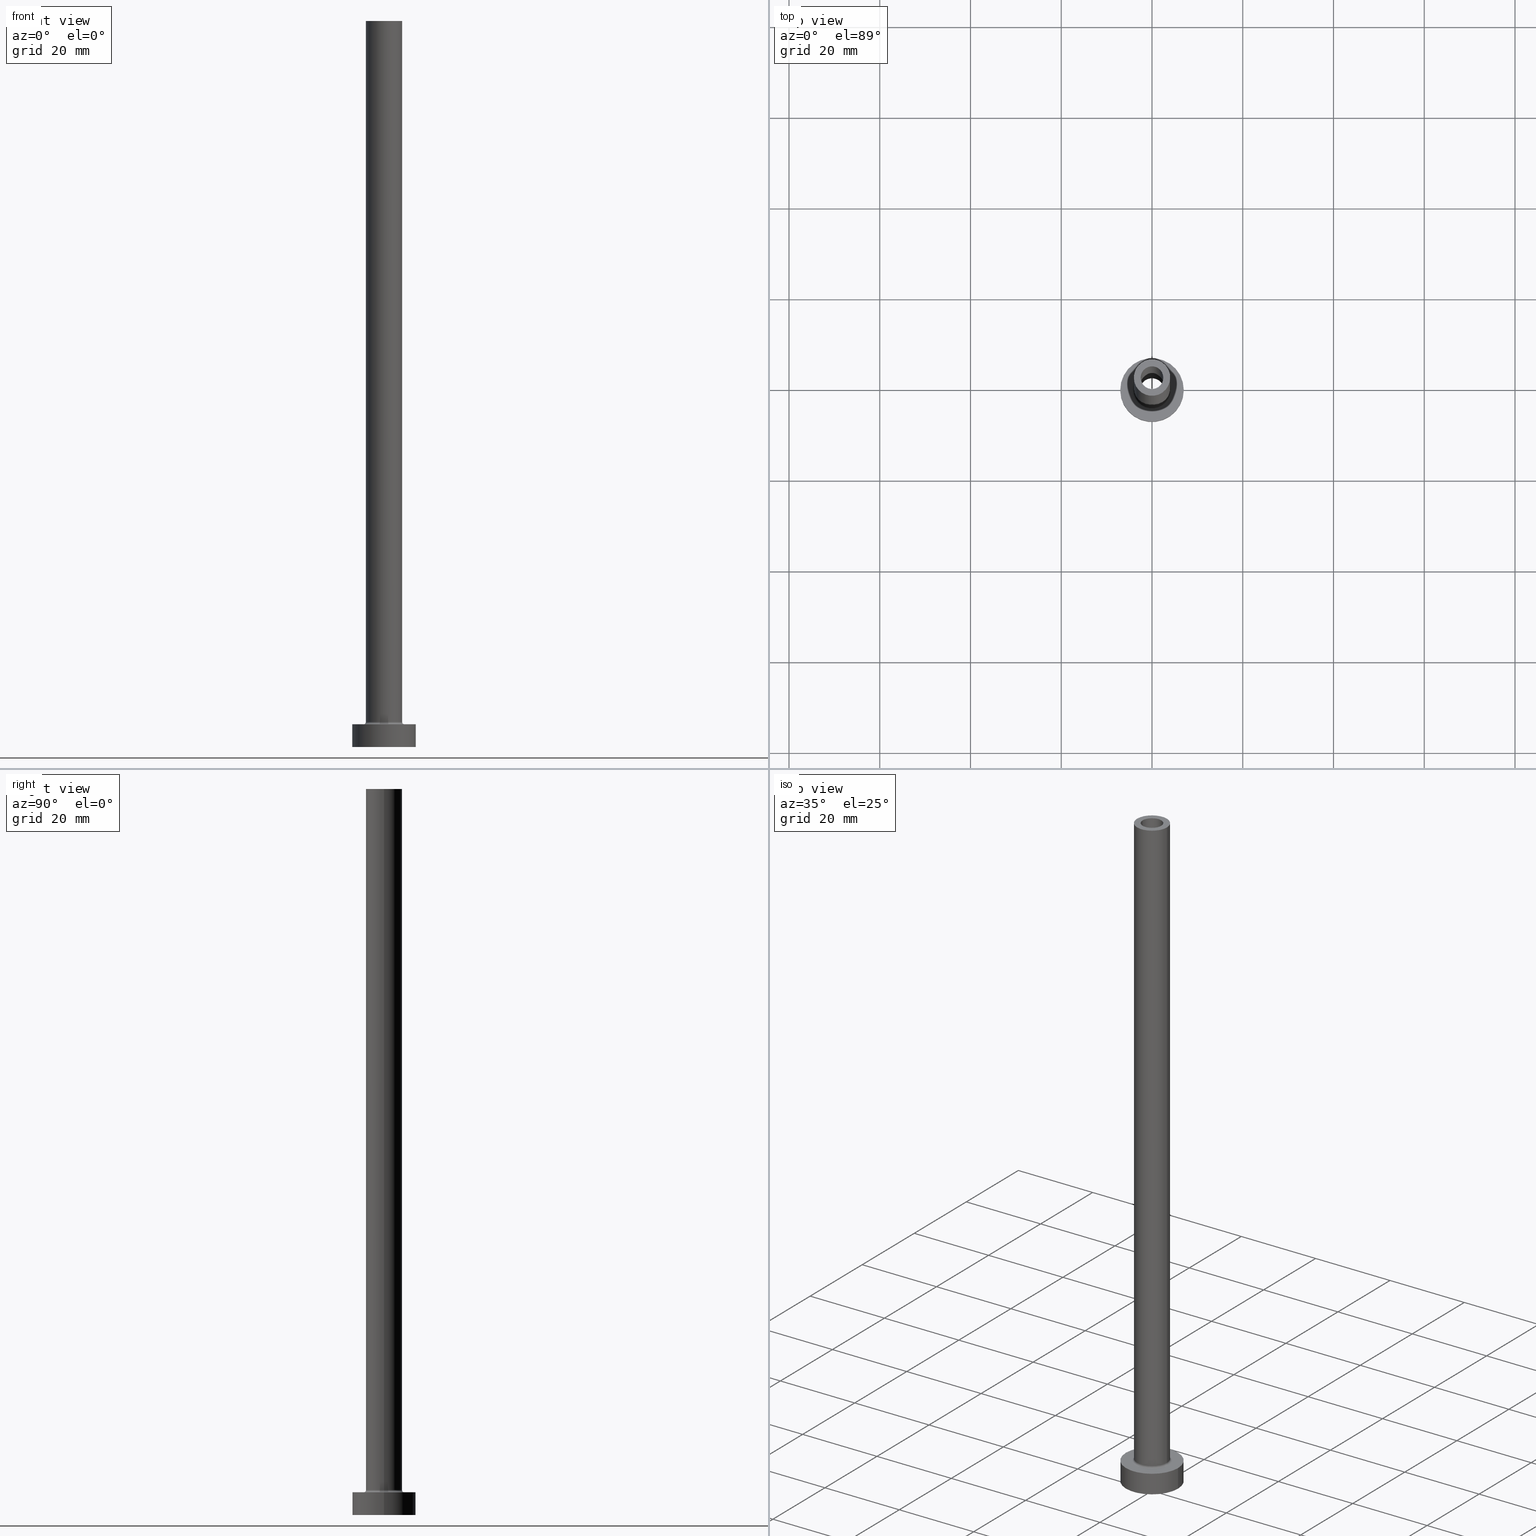
[diagram: canonical four-view strip — front | top / right | iso, engineering-drawing reading convention]
A machine part, canonical four-view strip (front | top / right | iso — engineering-drawing reading convention). The complete STEP part file that produces these views, byte-faithful:
ISO-10303-21;
HEADER;
FILE_DESCRIPTION (( 'STEP AP203' ),
    '1' );
FILE_NAME ('f196.STEP',
    '2023-02-13T17:11:36',
    ( '' ),
    ( '' ),
    'SwSTEP 2.0',
    'SolidWorks 2019',
    '' );
FILE_SCHEMA (( 'CONFIG_CONTROL_DESIGN' ));
ENDSEC;

DATA;
#1 = CALENDAR_DATE ( 2023, 13, 2 ) ;
#2 = CARTESIAN_POINT ( 'NONE',  ( 4.500000000000000888, 0.000000000000000000, 5.500000000000005329 ) ) ;
#3 = VECTOR ( 'NONE', #172, 1000.000000000000000 ) ;
#4 = PERSON_AND_ORGANIZATION ( #58, #191 ) ;
#5 = PERSON_AND_ORGANIZATION_ROLE ( 'design_owner' ) ;
#6 = AXIS2_PLACEMENT_3D ( 'NONE', #448, #62, #342 ) ;
#7 = APPLICATION_PROTOCOL_DEFINITION ( 'international standard', 'config_control_design', 1994, #75 ) ;
#8 = VERTEX_POINT ( 'NONE', #81 ) ;
#9 = LINE ( 'NONE', #245, #290 ) ;
#10 = CIRCLE ( 'NONE', #403, 4.000000000000000000 ) ;
#11 = COORDINATED_UNIVERSAL_TIME_OFFSET ( 1, 0, .AHEAD. ) ;
#12 = ORIENTED_EDGE ( 'NONE', *, *, #438, .F. ) ;
#13 = APPLICATION_PROTOCOL_DEFINITION ( 'international standard', 'config_control_design', 1994, #166 ) ;
#14 = EDGE_LOOP ( 'NONE', ( #262, #375 ) ) ;
#15 = CYLINDRICAL_SURFACE ( 'NONE', #237, 7.000000000000000000 ) ;
#16 = CIRCLE ( 'NONE', #435, 7.000000000000000000 ) ;
#17 = EDGE_CURVE ( 'NONE', #394, #154, #89, .T. ) ;
#18 = EDGE_CURVE ( 'NONE', #449, #350, #427, .T. ) ;
#19 = ORIENTED_EDGE ( 'NONE', *, *, #110, .F. ) ;
#20 = AXIS2_PLACEMENT_3D ( 'NONE', #112, #42, #352 ) ;
#21 = PRODUCT_DEFINITION_FORMATION_WITH_SPECIFIED_SOURCE ( 'LIBOVOLN�', '', #334, .NOT_KNOWN. ) ;
#22 = DIRECTION ( 'NONE',  ( 1.000000000000000000, 0.000000000000000000, 0.000000000000000000 ) ) ;
#23 = ORIENTED_EDGE ( 'NONE', *, *, #236, .T. ) ;
#24 = CARTESIAN_POINT ( 'NONE',  ( 0.000000000000000000, 0.000000000000000000, 160.0000000000000000 ) ) ;
#25 = DIRECTION ( 'NONE',  ( 0.000000000000000000, 0.000000000000000000, 1.000000000000000000 ) ) ;
#26 = DIRECTION ( 'NONE',  ( 1.000000000000000000, 0.000000000000000000, 0.000000000000000000 ) ) ;
#27 = AXIS2_PLACEMENT_3D ( 'NONE', #150, #288, #160 ) ;
#28 = ORIENTED_EDGE ( 'NONE', *, *, #18, .F. ) ;
#29 = LOCAL_TIME ( 18, 11, 36.00000000000000000, #88 ) ;
#30 = ORIENTED_EDGE ( 'NONE', *, *, #242, .T. ) ;
#31 = ORIENTED_EDGE ( 'NONE', *, *, #94, .F. ) ;
#32 = FACE_OUTER_BOUND ( 'NONE', #171, .T. ) ;
#33 = UNCERTAINTY_MEASURE_WITH_UNIT (LENGTH_MEASURE( 1.000000000000000082E-05 ), #105, 'distance_accuracy_value', 'NONE');
#34 = ORIENTED_EDGE ( 'NONE', *, *, #428, .F. ) ;
#35 = DIRECTION ( 'NONE',  ( 1.000000000000000000, 0.000000000000000000, -0.000000000000000000 ) ) ;
#36 = CIRCLE ( 'NONE', #203, 4.500000000000000888 ) ;
#37 = PERSON_AND_ORGANIZATION ( #58, #191 ) ;
#38 = CARTESIAN_POINT ( 'NONE',  ( 0.000000000000000000, 0.000000000000000000, 5.000000000000000000 ) ) ;
#39 = AXIS2_PLACEMENT_3D ( 'NONE', #363, #53, #331 ) ;
#40 = FACE_OUTER_BOUND ( 'NONE', #224, .T. ) ;
#41 = ORIENTED_EDGE ( 'NONE', *, *, #226, .T. ) ;
#42 = DIRECTION ( 'NONE',  ( 0.000000000000000000, 0.000000000000000000, -1.000000000000000000 ) ) ;
#43 = DIRECTION ( 'NONE',  ( 1.000000000000000000, 0.000000000000000000, 0.000000000000000000 ) ) ;
#44 = DIRECTION ( 'NONE',  ( 0.000000000000000000, 0.000000000000000000, 1.000000000000000000 ) ) ;
#45 = ORIENTED_EDGE ( 'NONE', *, *, #107, .T. ) ;
#46 = ORIENTED_EDGE ( 'NONE', *, *, #453, .T. ) ;
#47 = AXIS2_PLACEMENT_3D ( 'NONE', #382, #293, #256 ) ;
#48 = APPROVAL_ROLE ( '' ) ;
#49 = APPROVAL ( #220, 'NEUR�EN�' ) ;
#50 = DIRECTION ( 'NONE',  ( -0.000000000000000000, -0.000000000000000000, -1.000000000000000000 ) ) ;
#51 = AXIS2_PLACEMENT_3D ( 'NONE', #278, #422, #419 ) ;
#52 =( GEOMETRIC_REPRESENTATION_CONTEXT ( 3 ) GLOBAL_UNCERTAINTY_ASSIGNED_CONTEXT ( ( #33 ) ) GLOBAL_UNIT_ASSIGNED_CONTEXT ( ( #105, #206, #356 ) ) REPRESENTATION_CONTEXT ( 'NONE', 'WORKASPACE' ) );
#53 = DIRECTION ( 'NONE',  ( 0.000000000000000000, 0.000000000000000000, 1.000000000000000000 ) ) ;
#54 = APPROVAL_ROLE ( '' ) ;
#55 = AXIS2_PLACEMENT_3D ( 'NONE', #24, #59, #22 ) ;
#56 = ORIENTED_EDGE ( 'NONE', *, *, #260, .T. ) ;
#57 = DIRECTION ( 'NONE',  ( 0.000000000000000000, -1.000000000000000000, 0.000000000000000000 ) ) ;
#58 = PERSON ( 'NEUR�EN�', 'NEUR�EN�', 'NEUR�EN�', ('NEUR�EN�'), ('NEUR�EN�'), ('NEUR�EN�') ) ;
#59 = DIRECTION ( 'NONE',  ( 0.000000000000000000, 0.000000000000000000, 1.000000000000000000 ) ) ;
#60 = ORIENTED_EDGE ( 'NONE', *, *, #242, .F. ) ;
#61 = DIRECTION ( 'NONE',  ( 1.000000000000000000, 0.000000000000000000, -0.000000000000000000 ) ) ;
#62 = DIRECTION ( 'NONE',  ( 0.000000000000000000, 0.000000000000000000, -1.000000000000000000 ) ) ;
#63 = EDGE_LOOP ( 'NONE', ( #430, #320 ) ) ;
#64 = CARTESIAN_POINT ( 'NONE',  ( 0.000000000000000000, 0.000000000000000000, 5.000000000000000000 ) ) ;
#65 = EDGE_CURVE ( 'NONE', #122, #300, #344, .T. ) ;
#66 = ORIENTED_EDGE ( 'NONE', *, *, #226, .F. ) ;
#67 = CARTESIAN_POINT ( 'NONE',  ( 0.000000000000000000, 0.000000000000000000, 5.500000000000005329 ) ) ;
#68 = VECTOR ( 'NONE', #400, 1000.000000000000000 ) ;
#69 = ORIENTED_EDGE ( 'NONE', *, *, #294, .T. ) ;
#70 = APPROVAL_ROLE ( '' ) ;
#71 = FACE_BOUND ( 'NONE', #63, .T. ) ;
#72 = ORIENTED_EDGE ( 'NONE', *, *, #374, .F. ) ;
#73 = DIRECTION ( 'NONE',  ( -1.000000000000000000, 0.000000000000000000, 0.000000000000000000 ) ) ;
#74 = PERSON_AND_ORGANIZATION ( #58, #191 ) ;
#75 = APPLICATION_CONTEXT ( 'configuration controlled 3d designs of mechanical parts and assemblies' ) ;
#76 = CARTESIAN_POINT ( 'NONE',  ( -2.649999999999999911, 0.000000000000000000, 0.000000000000000000 ) ) ;
#77 = AXIS2_PLACEMENT_3D ( 'NONE', #299, #163, #240 ) ;
#78 = VERTEX_POINT ( 'NONE', #263 ) ;
#79 = EDGE_LOOP ( 'NONE', ( #345, #151, #455, #23 ) ) ;
#80 = DIRECTION ( 'NONE',  ( 1.000000000000000000, 0.000000000000000000, 0.000000000000000000 ) ) ;
#81 = CARTESIAN_POINT ( 'NONE',  ( -7.000000000000000000, 0.000000000000000000, 5.000000000000000000 ) ) ;
#82 = CYLINDRICAL_SURFACE ( 'NONE', #338, 2.649999999999999911 ) ;
#83 = EDGE_CURVE ( 'NONE', #8, #78, #16, .T. ) ;
#84 = CALENDAR_DATE ( 2023, 13, 2 ) ;
#85 = CARTESIAN_POINT ( 'NONE',  ( -4.000000000000000000, 0.000000000000000000, 160.0000000000000000 ) ) ;
#86 = CARTESIAN_POINT ( 'NONE',  ( 0.000000000000000000, 0.000000000000000000, 160.0000000000000000 ) ) ;
#87 = CALENDAR_DATE ( 2023, 13, 2 ) ;
#88 = COORDINATED_UNIVERSAL_TIME_OFFSET ( 1, 0, .AHEAD. ) ;
#89 = LINE ( 'NONE', #197, #401 ) ;
#90 = ORIENTED_EDGE ( 'NONE', *, *, #252, .T. ) ;
#91 = AXIS2_PLACEMENT_3D ( 'NONE', #38, #380, #80 ) ;
#92 = PERSON_AND_ORGANIZATION ( #58, #191 ) ;
#93 = ORIENTED_EDGE ( 'NONE', *, *, #252, .F. ) ;
#94 = EDGE_CURVE ( 'NONE', #204, #350, #407, .T. ) ;
#95 = PERSON_AND_ORGANIZATION_ROLE ( 'design_supplier' ) ;
#96 = EDGE_CURVE ( 'NONE', #312, #300, #257, .T. ) ;
#97 = CIRCLE ( 'NONE', #51, 4.500000000000000888 ) ;
#98 = ORIENTED_EDGE ( 'NONE', *, *, #236, .F. ) ;
#99 = CARTESIAN_POINT ( 'NONE',  ( 7.000000000000000000, 8.572527594031473190E-16, 0.000000000000000000 ) ) ;
#100 = CIRCLE ( 'NONE', #27, 2.649999999999999911 ) ;
#101 = EDGE_CURVE ( 'NONE', #122, #104, #234, .T. ) ;
#102 = CYLINDRICAL_SURFACE ( 'NONE', #143, 4.000000000000000000 ) ;
#103 = ORIENTED_EDGE ( 'NONE', *, *, #453, .F. ) ;
#104 = VERTEX_POINT ( 'NONE', #362 ) ;
#105 =( LENGTH_UNIT ( ) NAMED_UNIT ( * ) SI_UNIT ( .MILLI., .METRE. ) );
#106 = CARTESIAN_POINT ( 'NONE',  ( -4.500000000000000888, 5.510910596163089556E-16, 5.500000000000005329 ) ) ;
#107 = EDGE_CURVE ( 'NONE', #209, #104, #36, .T. ) ;
#108 = DIRECTION ( 'NONE',  ( 1.000000000000000000, 0.000000000000000000, 0.000000000000000000 ) ) ;
#109 = CC_DESIGN_PERSON_AND_ORGANIZATION_ASSIGNMENT ( #37, #425, ( #378 ) ) ;
#110 = EDGE_CURVE ( 'NONE', #461, #429, #347, .T. ) ;
#111 = CARTESIAN_POINT ( 'NONE',  ( -2.500000000000000000, 0.000000000000000000, 160.0000000000000000 ) ) ;
#112 = CARTESIAN_POINT ( 'NONE',  ( 0.000000000000000000, 0.000000000000000000, 160.0000000000000000 ) ) ;
#113 = DIRECTION ( 'NONE',  ( 1.000000000000000000, 0.000000000000000000, 0.000000000000000000 ) ) ;
#114 = AXIS2_PLACEMENT_3D ( 'NONE', #434, #255, #230 ) ;
#115 = PLANE ( 'NONE',  #223 ) ;
#116 = CARTESIAN_POINT ( 'NONE',  ( 0.000000000000000000, 0.000000000000000000, 5.500000000000005329 ) ) ;
#117 = PRODUCT_RELATED_PRODUCT_CATEGORY ( 'detail', '', ( #334 ) ) ;
#118 = AXIS2_PLACEMENT_3D ( 'NONE', #323, #218, #145 ) ;
#119 = MECHANICAL_CONTEXT ( 'NONE', #166, 'mechanical' ) ;
#120 = DIRECTION ( 'NONE',  ( 0.000000000000000000, 0.000000000000000000, -1.000000000000000000 ) ) ;
#121 = ADVANCED_FACE ( 'NONE', ( #404 ), #102, .T. ) ;
#122 = VERTEX_POINT ( 'NONE', #241 ) ;
#123 = DATE_AND_TIME ( #156, #29 ) ;
#124 = DIRECTION ( 'NONE',  ( 0.000000000000000000, 0.000000000000000000, -1.000000000000000000 ) ) ;
#125 = CARTESIAN_POINT ( 'NONE',  ( -2.500000000000000000, 0.000000000000000000, 160.0000000000000000 ) ) ;
#126 = AXIS2_PLACEMENT_3D ( 'NONE', #116, #159, #113 ) ;
#127 = APPROVAL_DATE_TIME ( #231, #415 ) ;
#128 = AXIS2_PLACEMENT_3D ( 'NONE', #447, #133, #452 ) ;
#129 = ADVANCED_FACE ( 'NONE', ( #32 ), #353, .F. ) ;
#130 = AXIS2_PLACEMENT_3D ( 'NONE', #196, #157, #292 ) ;
#131 = AXIS2_PLACEMENT_3D ( 'NONE', #348, #413, #251 ) ;
#132 = CARTESIAN_POINT ( 'NONE',  ( -4.000000000000000000, 0.000000000000000000, 5.500000000000005329 ) ) ;
#133 = DIRECTION ( 'NONE',  ( 0.000000000000000000, 0.000000000000000000, 1.000000000000000000 ) ) ;
#134 = CARTESIAN_POINT ( 'NONE',  ( -4.000000000000000000, 0.000000000000000000, 160.0000000000000000 ) ) ;
#135 = CLOSED_SHELL ( 'NONE', ( #129, #162, #337, #178, #182, #296, #456, #397, #121, #349, #213, #306, #202, #460 ) ) ;
#136 = CIRCLE ( 'NONE', #91, 7.000000000000000000 ) ;
#137 = CARTESIAN_POINT ( 'NONE',  ( -2.500000000000000000, 0.000000000000000000, 115.0000000000000000 ) ) ;
#138 = DIRECTION ( 'NONE',  ( -1.000000000000000000, 0.000000000000000000, 0.000000000000000000 ) ) ;
#139 = FACE_OUTER_BOUND ( 'NONE', #454, .T. ) ;
#140 = ORIENTED_EDGE ( 'NONE', *, *, #393, .F. ) ;
#141 = ORIENTED_EDGE ( 'NONE', *, *, #294, .F. ) ;
#142 = CARTESIAN_POINT ( 'NONE',  ( 0.000000000000000000, 0.000000000000000000, 0.000000000000000000 ) ) ;
#143 = AXIS2_PLACEMENT_3D ( 'NONE', #201, #239, #138 ) ;
#144 = AXIS2_PLACEMENT_3D ( 'NONE', #436, #335, #261 ) ;
#145 = DIRECTION ( 'NONE',  ( 1.000000000000000000, 0.000000000000000000, 0.000000000000000000 ) ) ;
#146 = EDGE_LOOP ( 'NONE', ( #72, #192 ) ) ;
#147 = ORIENTED_EDGE ( 'NONE', *, *, #83, .F. ) ;
#148 = CARTESIAN_POINT ( 'NONE',  ( 0.000000000000000000, 0.000000000000000000, 5.500000000000005329 ) ) ;
#149 = DIRECTION ( 'NONE',  ( -1.000000000000000000, 0.000000000000000000, 0.000000000000000000 ) ) ;
#150 = CARTESIAN_POINT ( 'NONE',  ( 0.000000000000000000, 0.000000000000000000, 0.000000000000000000 ) ) ;
#151 = ORIENTED_EDGE ( 'NONE', *, *, #185, .T. ) ;
#152 = DIRECTION ( 'NONE',  ( 0.000000000000000000, 0.000000000000000000, 1.000000000000000000 ) ) ;
#153 = AXIS2_PLACEMENT_3D ( 'NONE', #2, #57, #124 ) ;
#154 = VERTEX_POINT ( 'NONE', #314 ) ;
#155 = COORDINATED_UNIVERSAL_TIME_OFFSET ( 1, 0, .AHEAD. ) ;
#156 = CALENDAR_DATE ( 2023, 13, 2 ) ;
#157 = DIRECTION ( 'NONE',  ( -0.000000000000000000, -0.000000000000000000, -1.000000000000000000 ) ) ;
#158 = TOROIDAL_SURFACE ( 'NONE', #205, 4.500000000000000888, 0.5000000000000000000 ) ;
#159 = DIRECTION ( 'NONE',  ( 0.000000000000000000, 0.000000000000000000, 1.000000000000000000 ) ) ;
#160 = DIRECTION ( 'NONE',  ( 1.000000000000000000, 0.000000000000000000, 0.000000000000000000 ) ) ;
#161 = CIRCLE ( 'NONE', #131, 2.649999999999999911 ) ;
#162 = ADVANCED_FACE ( 'NONE', ( #217 ), #82, .F. ) ;
#163 = DIRECTION ( 'NONE',  ( 0.000000000000000000, 0.000000000000000000, 1.000000000000000000 ) ) ;
#164 = ORIENTED_EDGE ( 'NONE', *, *, #65, .F. ) ;
#165 = EDGE_CURVE ( 'NONE', #104, #209, #97, .T. ) ;
#166 = APPLICATION_CONTEXT ( 'configuration controlled 3d designs of mechanical parts and assemblies' ) ;
#167 = CARTESIAN_POINT ( 'NONE',  ( 0.000000000000000000, 0.000000000000000000, 5.000000000000000000 ) ) ;
#168 = CIRCLE ( 'NONE', #55, 4.000000000000000000 ) ;
#169 = VERTEX_POINT ( 'NONE', #111 ) ;
#170 = APPROVAL ( #225, 'NEUR�EN�' ) ;
#171 = EDGE_LOOP ( 'NONE', ( #177, #216, #31, #60 ) ) ;
#172 = DIRECTION ( 'NONE',  ( 0.000000000000000000, 0.000000000000000000, -1.000000000000000000 ) ) ;
#173 = ORIENTED_EDGE ( 'NONE', *, *, #374, .T. ) ;
#174 = APPROVAL_PERSON_ORGANIZATION ( #291, #170, #54 ) ;
#175 = EDGE_LOOP ( 'NONE', ( #222, #45 ) ) ;
#176 = CARTESIAN_POINT ( 'NONE',  ( 4.000000000000000000, 4.898587196589412829E-16, 160.0000000000000000 ) ) ;
#177 = ORIENTED_EDGE ( 'NONE', *, *, #359, .T. ) ;
#178 = ADVANCED_FACE ( 'NONE', ( #388 ), #390, .T. ) ;
#179 = VECTOR ( 'NONE', #336, 1000.000000000000000 ) ;
#180 = CARTESIAN_POINT ( 'NONE',  ( 2.649999999999999911, 3.245314017740485469E-16, 115.0000000000000000 ) ) ;
#181 = LOCAL_TIME ( 18, 11, 36.00000000000000000, #285 ) ;
#182 = ADVANCED_FACE ( 'NONE', ( #40 ), #211, .T. ) ;
#183 = ORIENTED_EDGE ( 'NONE', *, *, #96, .F. ) ;
#184 = DIRECTION ( 'NONE',  ( 1.000000000000000000, 0.000000000000000000, 0.000000000000000000 ) ) ;
#185 = EDGE_CURVE ( 'NONE', #394, #461, #451, .T. ) ;
#186 = DIRECTION ( 'NONE',  ( -1.000000000000000000, 1.224646799147351482E-16, 0.000000000000000000 ) ) ;
#187 = MANIFOLD_SOLID_BREP ( 'Odebrat vysunut�m4', #135 ) ;
#188 = PERSON_AND_ORGANIZATION ( #58, #191 ) ;
#189 = CIRCLE ( 'NONE', #130, 2.649999999999999911 ) ;
#190 = EDGE_CURVE ( 'NONE', #350, #204, #253, .T. ) ;
#191 = ORGANIZATION ( 'NEUR�EN�', 'NEUR�EN�', '' ) ;
#192 = ORIENTED_EDGE ( 'NONE', *, *, #185, .F. ) ;
#193 = LINE ( 'NONE', #125, #179 ) ;
#194 = DIRECTION ( 'NONE',  ( -0.000000000000000000, -0.000000000000000000, -1.000000000000000000 ) ) ;
#195 = VECTOR ( 'NONE', #443, 1000.000000000000000 ) ;
#196 = CARTESIAN_POINT ( 'NONE',  ( 0.000000000000000000, 0.000000000000000000, 0.000000000000000000 ) ) ;
#197 = CARTESIAN_POINT ( 'NONE',  ( 2.649999999999999911, 3.245314017740485469E-16, 122.4953318805774103 ) ) ;
#198 = EDGE_LOOP ( 'NONE', ( #98, #103 ) ) ;
#199 = ORIENTED_EDGE ( 'NONE', *, *, #65, .T. ) ;
#200 = LOCAL_TIME ( 18, 11, 36.00000000000000000, #155 ) ;
#201 = CARTESIAN_POINT ( 'NONE',  ( 0.000000000000000000, 0.000000000000000000, 160.0000000000000000 ) ) ;
#202 = ADVANCED_FACE ( 'NONE', ( #275, #414 ), #233, .F. ) ;
#203 = AXIS2_PLACEMENT_3D ( 'NONE', #64, #266, #26 ) ;
#204 = VERTEX_POINT ( 'NONE', #137 ) ;
#205 = AXIS2_PLACEMENT_3D ( 'NONE', #67, #244, #357 ) ;
#206 =( NAMED_UNIT ( * ) PLANE_ANGLE_UNIT ( ) SI_UNIT ( $, .RADIAN. ) );
#207 = FACE_OUTER_BOUND ( 'NONE', #310, .T. ) ;
#208 = DIRECTION ( 'NONE',  ( 0.000000000000000000, 0.000000000000000000, -1.000000000000000000 ) ) ;
#209 = VERTEX_POINT ( 'NONE', #411 ) ;
#210 = DIRECTION ( 'NONE',  ( 1.000000000000000000, 0.000000000000000000, -0.000000000000000000 ) ) ;
#211 = CYLINDRICAL_SURFACE ( 'NONE', #144, 7.000000000000000000 ) ;
#212 = DIRECTION ( 'NONE',  ( 1.000000000000000000, 0.000000000000000000, 0.000000000000000000 ) ) ;
#213 = ADVANCED_FACE ( 'NONE', ( #139 ), #280, .F. ) ;
#214 = AXIS2_PLACEMENT_3D ( 'NONE', #420, #249, #210 ) ;
#215 = LINE ( 'NONE', #365, #370 ) ;
#216 = ORIENTED_EDGE ( 'NONE', *, *, #18, .T. ) ;
#217 = FACE_OUTER_BOUND ( 'NONE', #232, .T. ) ;
#218 = DIRECTION ( 'NONE',  ( 0.000000000000000000, 0.000000000000000000, 1.000000000000000000 ) ) ;
#219 = DIRECTION ( 'NONE',  ( -0.000000000000000000, -0.000000000000000000, -1.000000000000000000 ) ) ;
#220 = APPROVAL_STATUS ( 'not_yet_approved' ) ;
#221 = DATE_AND_TIME ( #84, #238 ) ;
#222 = ORIENTED_EDGE ( 'NONE', *, *, #165, .T. ) ;
#223 = AXIS2_PLACEMENT_3D ( 'NONE', #459, #254, #35 ) ;
#224 = EDGE_LOOP ( 'NONE', ( #283, #90, #418, #12 ) ) ;
#225 = APPROVAL_STATUS ( 'not_yet_approved' ) ;
#226 = EDGE_CURVE ( 'NONE', #312, #325, #373, .T. ) ;
#227 = LINE ( 'NONE', #333, #68 ) ;
#228 = AXIS2_PLACEMENT_3D ( 'NONE', #86, #50, #73 ) ;
#229 = APPROVAL_PERSON_ORGANIZATION ( #398, #49, #48 ) ;
#230 = DIRECTION ( 'NONE',  ( 1.000000000000000000, 0.000000000000000000, 0.000000000000000000 ) ) ;
#231 = DATE_AND_TIME ( #439, #371 ) ;
#232 = EDGE_LOOP ( 'NONE', ( #173, #343, #46, #19 ) ) ;
#233 = PLANE ( 'NONE',  #268 ) ;
#234 = CIRCLE ( 'NONE', #153, 0.5000000000000004441 ) ;
#235 = FACE_OUTER_BOUND ( 'NONE', #79, .T. ) ;
#236 = EDGE_CURVE ( 'NONE', #429, #154, #100, .T. ) ;
#237 = AXIS2_PLACEMENT_3D ( 'NONE', #167, #446, #445 ) ;
#238 = LOCAL_TIME ( 18, 11, 36.00000000000000000, #389 ) ;
#239 = DIRECTION ( 'NONE',  ( -0.000000000000000000, -0.000000000000000000, -1.000000000000000000 ) ) ;
#240 = DIRECTION ( 'NONE',  ( 1.000000000000000000, 0.000000000000000000, 0.000000000000000000 ) ) ;
#241 = CARTESIAN_POINT ( 'NONE',  ( 4.000000000000000000, 4.898587196589412829E-16, 5.500000000000005329 ) ) ;
#242 = EDGE_CURVE ( 'NONE', #169, #204, #193, .T. ) ;
#243 = SHAPE_DEFINITION_REPRESENTATION ( #367, #366 ) ;
#244 = DIRECTION ( 'NONE',  ( 0.000000000000000000, 0.000000000000000000, 1.000000000000000000 ) ) ;
#245 = CARTESIAN_POINT ( 'NONE',  ( 7.000000000000000000, 8.572527594031473190E-16, 5.000000000000000000 ) ) ;
#246 = ORIENTED_EDGE ( 'NONE', *, *, #441, .T. ) ;
#247 = DESIGN_CONTEXT ( 'detailed design', #75, 'design' ) ;
#248 = PERSON_AND_ORGANIZATION ( #58, #191 ) ;
#249 = DIRECTION ( 'NONE',  ( 0.000000000000000000, 0.000000000000000000, 1.000000000000000000 ) ) ;
#250 = CYLINDRICAL_SURFACE ( 'NONE', #20, 2.500000000000000000 ) ;
#251 = DIRECTION ( 'NONE',  ( 1.000000000000000000, 0.000000000000000000, 0.000000000000000000 ) ) ;
#252 = EDGE_CURVE ( 'NONE', #78, #303, #9, .T. ) ;
#253 = CIRCLE ( 'NONE', #128, 2.500000000000000000 ) ;
#254 = DIRECTION ( 'NONE',  ( 0.000000000000000000, 0.000000000000000000, 1.000000000000000000 ) ) ;
#255 = DIRECTION ( 'NONE',  ( 0.000000000000000000, 0.000000000000000000, 1.000000000000000000 ) ) ;
#256 = DIRECTION ( 'NONE',  ( -1.000000000000000000, 0.000000000000000000, 0.000000000000000000 ) ) ;
#257 = LINE ( 'NONE', #85, #368 ) ;
#258 = ORIENTED_EDGE ( 'NONE', *, *, #391, .T. ) ;
#259 = EDGE_CURVE ( 'NONE', #303, #277, #381, .T. ) ;
#260 = EDGE_CURVE ( 'NONE', #449, #169, #444, .T. ) ;
#261 = DIRECTION ( 'NONE',  ( -1.000000000000000000, 0.000000000000000000, 0.000000000000000000 ) ) ;
#262 = ORIENTED_EDGE ( 'NONE', *, *, #94, .T. ) ;
#263 = CARTESIAN_POINT ( 'NONE',  ( 7.000000000000000000, 8.572527594031473190E-16, 5.000000000000000000 ) ) ;
#264 = AXIS2_PLACEMENT_3D ( 'NONE', #341, #25, #308 ) ;
#265 = ORIENTED_EDGE ( 'NONE', *, *, #324, .T. ) ;
#266 = DIRECTION ( 'NONE',  ( -0.000000000000000000, -0.000000000000000000, -1.000000000000000000 ) ) ;
#267 = CARTESIAN_POINT ( 'NONE',  ( 0.000000000000000000, 0.000000000000000000, 115.0000000000000000 ) ) ;
#268 = AXIS2_PLACEMENT_3D ( 'NONE', #267, #304, #61 ) ;
#269 = EDGE_LOOP ( 'NONE', ( #141, #246, #199, #183 ) ) ;
#270 = CARTESIAN_POINT ( 'NONE',  ( -2.649999999999999911, 0.000000000000000000, 122.4953318805774103 ) ) ;
#271 = EDGE_LOOP ( 'NONE', ( #41, #69 ) ) ;
#272 = ORIENTED_EDGE ( 'NONE', *, *, #259, .F. ) ;
#273 = CARTESIAN_POINT ( 'NONE',  ( 0.000000000000000000, 0.000000000000000000, 5.000000000000000000 ) ) ;
#274 = FACE_BOUND ( 'NONE', #198, .T. ) ;
#275 = FACE_BOUND ( 'NONE', #14, .T. ) ;
#276 = DIRECTION ( 'NONE',  ( 0.000000000000000000, 0.000000000000000000, 1.000000000000000000 ) ) ;
#277 = VERTEX_POINT ( 'NONE', #307 ) ;
#278 = CARTESIAN_POINT ( 'NONE',  ( 0.000000000000000000, 0.000000000000000000, 5.000000000000000000 ) ) ;
#279 = ORIENTED_EDGE ( 'NONE', *, *, #393, .T. ) ;
#280 = TOROIDAL_SURFACE ( 'NONE', #395, 4.500000000000000888, 0.5000000000000000000 ) ;
#281 = ORIENTED_EDGE ( 'NONE', *, *, #391, .F. ) ;
#282 = PLANE ( 'NONE',  #214 ) ;
#283 = ORIENTED_EDGE ( 'NONE', *, *, #324, .F. ) ;
#284 = CARTESIAN_POINT ( 'NONE',  ( 0.000000000000000000, 0.000000000000000000, 5.500000000000005329 ) ) ;
#285 = COORDINATED_UNIVERSAL_TIME_OFFSET ( 1, 0, .AHEAD. ) ;
#286 = DIRECTION ( 'NONE',  ( 0.000000000000000000, 0.000000000000000000, 1.000000000000000000 ) ) ;
#287 = CARTESIAN_POINT ( 'NONE',  ( 0.000000000000000000, 0.000000000000000000, 122.4953318805774103 ) ) ;
#288 = DIRECTION ( 'NONE',  ( -0.000000000000000000, -0.000000000000000000, -1.000000000000000000 ) ) ;
#289 = DATE_AND_TIME ( #87, #200 ) ;
#290 = VECTOR ( 'NONE', #421, 1000.000000000000000 ) ;
#291 = PERSON_AND_ORGANIZATION ( #58, #191 ) ;
#292 = DIRECTION ( 'NONE',  ( 1.000000000000000000, 0.000000000000000000, 0.000000000000000000 ) ) ;
#293 = DIRECTION ( 'NONE',  ( 0.000000000000000000, 0.000000000000000000, -1.000000000000000000 ) ) ;
#294 = EDGE_CURVE ( 'NONE', #325, #312, #168, .T. ) ;
#295 = APPROVAL_DATE_TIME ( #392, #49 ) ;
#296 = ADVANCED_FACE ( 'NONE', ( #450 ), #15, .T. ) ;
#297 = AXIS2_PLACEMENT_3D ( 'NONE', #423, #326, #212 ) ;
#298 = CC_DESIGN_APPROVAL ( #170, ( #316 ) ) ;
#299 = CARTESIAN_POINT ( 'NONE',  ( 0.000000000000000000, 0.000000000000000000, 160.0000000000000000 ) ) ;
#300 = VERTEX_POINT ( 'NONE', #132 ) ;
#301 = AXIS2_PLACEMENT_3D ( 'NONE', #106, #417, #186 ) ;
#302 = CC_DESIGN_SECURITY_CLASSIFICATION ( #316, ( #21 ) ) ;
#303 = VERTEX_POINT ( 'NONE', #99 ) ;
#304 = DIRECTION ( 'NONE',  ( 0.000000000000000000, 0.000000000000000000, 1.000000000000000000 ) ) ;
#305 = CC_DESIGN_DATE_AND_TIME_ASSIGNMENT ( #289, #318, ( #378 ) ) ;
#306 = ADVANCED_FACE ( 'NONE', ( #235 ), #372, .F. ) ;
#307 = CARTESIAN_POINT ( 'NONE',  ( -7.000000000000000000, 0.000000000000000000, 0.000000000000000000 ) ) ;
#308 = DIRECTION ( 'NONE',  ( 1.000000000000000000, 0.000000000000000000, 0.000000000000000000 ) ) ;
#309 = ORIENTED_EDGE ( 'NONE', *, *, #83, .T. ) ;
#310 = EDGE_LOOP ( 'NONE', ( #34, #279, #457, #406 ) ) ;
#311 = FACE_OUTER_BOUND ( 'NONE', #442, .T. ) ;
#312 = VERTEX_POINT ( 'NONE', #134 ) ;
#313 = CARTESIAN_POINT ( 'NONE',  ( 2.500000000000000000, 3.061616997868382648E-16, 115.0000000000000000 ) ) ;
#314 = CARTESIAN_POINT ( 'NONE',  ( 2.649999999999999911, 3.245314017740485469E-16, 0.000000000000000000 ) ) ;
#315 = EDGE_LOOP ( 'NONE', ( #399, #66, #387, #402 ) ) ;
#316 = SECURITY_CLASSIFICATION ( '', '', #332 ) ;
#317 = ORIENTED_EDGE ( 'NONE', *, *, #107, .F. ) ;
#318 = DATE_TIME_ROLE ( 'creation_date' ) ;
#319 = FACE_OUTER_BOUND ( 'NONE', #386, .T. ) ;
#320 = ORIENTED_EDGE ( 'NONE', *, *, #260, .F. ) ;
#321 = CARTESIAN_POINT ( 'NONE',  ( 0.000000000000000000, 0.000000000000000000, 5.000000000000000000 ) ) ;
#322 = CARTESIAN_POINT ( 'NONE',  ( 0.000000000000000000, 0.000000000000000000, 0.000000000000000000 ) ) ;
#323 = CARTESIAN_POINT ( 'NONE',  ( 0.000000000000000000, 0.000000000000000000, 160.0000000000000000 ) ) ;
#324 = EDGE_CURVE ( 'NONE', #78, #8, #136, .T. ) ;
#325 = VERTEX_POINT ( 'NONE', #176 ) ;
#326 = DIRECTION ( 'NONE',  ( 0.000000000000000000, 0.000000000000000000, 1.000000000000000000 ) ) ;
#327 = AXIS2_PLACEMENT_3D ( 'NONE', #273, #276, #379 ) ;
#328 = FACE_BOUND ( 'NONE', #175, .T. ) ;
#329 = DIRECTION ( 'NONE',  ( 0.000000000000000000, 0.000000000000000000, 1.000000000000000000 ) ) ;
#330 = PERSON_AND_ORGANIZATION_ROLE ( 'classification_officer' ) ;
#331 = DIRECTION ( 'NONE',  ( 1.000000000000000000, 0.000000000000000000, 0.000000000000000000 ) ) ;
#332 = SECURITY_CLASSIFICATION_LEVEL ( 'unclassified' ) ;
#333 = CARTESIAN_POINT ( 'NONE',  ( 4.000000000000000000, 4.898587196589412829E-16, 160.0000000000000000 ) ) ;
#334 = PRODUCT ( 'f196', 'f196', '', ( #119 ) ) ;
#335 = DIRECTION ( 'NONE',  ( -0.000000000000000000, -0.000000000000000000, -1.000000000000000000 ) ) ;
#336 = DIRECTION ( 'NONE',  ( 0.000000000000000000, 0.000000000000000000, -1.000000000000000000 ) ) ;
#337 = ADVANCED_FACE ( 'NONE', ( #207 ), #158, .F. ) ;
#338 = AXIS2_PLACEMENT_3D ( 'NONE', #287, #208, #149 ) ;
#339 = EDGE_LOOP ( 'NONE', ( #93, #147, #354, #258 ) ) ;
#340 = AXIS2_PLACEMENT_3D ( 'NONE', #142, #360, #43 ) ;
#341 = CARTESIAN_POINT ( 'NONE',  ( 0.000000000000000000, 0.000000000000000000, 115.0000000000000000 ) ) ;
#342 = DIRECTION ( 'NONE',  ( -1.000000000000000000, 0.000000000000000000, 0.000000000000000000 ) ) ;
#343 = ORIENTED_EDGE ( 'NONE', *, *, #17, .T. ) ;
#344 = CIRCLE ( 'NONE', #126, 4.000000000000000000 ) ;
#345 = ORIENTED_EDGE ( 'NONE', *, *, #17, .F. ) ;
#346 = CIRCLE ( 'NONE', #301, 0.5000000000000004441 ) ;
#347 = LINE ( 'NONE', #270, #3 ) ;
#348 = CARTESIAN_POINT ( 'NONE',  ( 0.000000000000000000, 0.000000000000000000, 115.0000000000000000 ) ) ;
#349 = ADVANCED_FACE ( 'NONE', ( #71, #351 ), #115, .T. ) ;
#350 = VERTEX_POINT ( 'NONE', #313 ) ;
#351 = FACE_OUTER_BOUND ( 'NONE', #271, .T. ) ;
#352 = DIRECTION ( 'NONE',  ( -1.000000000000000000, 0.000000000000000000, 0.000000000000000000 ) ) ;
#353 = CYLINDRICAL_SURFACE ( 'NONE', #47, 2.500000000000000000 ) ;
#354 = ORIENTED_EDGE ( 'NONE', *, *, #438, .T. ) ;
#355 = CIRCLE ( 'NONE', #118, 2.500000000000000000 ) ;
#356 =( NAMED_UNIT ( * ) SI_UNIT ( $, .STERADIAN. ) SOLID_ANGLE_UNIT ( ) );
#357 = DIRECTION ( 'NONE',  ( 1.000000000000000000, 0.000000000000000000, 0.000000000000000000 ) ) ;
#358 = CC_DESIGN_DATE_AND_TIME_ASSIGNMENT ( #123, #433, ( #316 ) ) ;
#359 = EDGE_CURVE ( 'NONE', #169, #449, #355, .T. ) ;
#360 = DIRECTION ( 'NONE',  ( 0.000000000000000000, 0.000000000000000000, 1.000000000000000000 ) ) ;
#361 = ORIENTED_EDGE ( 'NONE', *, *, #190, .F. ) ;
#362 = CARTESIAN_POINT ( 'NONE',  ( 4.500000000000000888, 0.000000000000000000, 5.000000000000002665 ) ) ;
#363 = CARTESIAN_POINT ( 'NONE',  ( 0.000000000000000000, 0.000000000000000000, 0.000000000000000000 ) ) ;
#364 = PERSON_AND_ORGANIZATION_ROLE ( 'creator' ) ;
#365 = CARTESIAN_POINT ( 'NONE',  ( -7.000000000000000000, 0.000000000000000000, 5.000000000000000000 ) ) ;
#366 = ADVANCED_BREP_SHAPE_REPRESENTATION ( 'f196', ( #187, #437 ), #52 ) ;
#367 = PRODUCT_DEFINITION_SHAPE ( 'NONE', 'NONE',  #378 ) ;
#368 = VECTOR ( 'NONE', #219, 1000.000000000000000 ) ;
#369 = CARTESIAN_POINT ( 'NONE',  ( 2.500000000000000000, 3.061616997868382648E-16, 160.0000000000000000 ) ) ;
#370 = VECTOR ( 'NONE', #194, 1000.000000000000000 ) ;
#371 = LOCAL_TIME ( 18, 11, 36.00000000000000000, #11 ) ;
#372 = CYLINDRICAL_SURFACE ( 'NONE', #6, 2.649999999999999911 ) ;
#373 = CIRCLE ( 'NONE', #297, 4.000000000000000000 ) ;
#374 = EDGE_CURVE ( 'NONE', #461, #394, #161, .T. ) ;
#375 = ORIENTED_EDGE ( 'NONE', *, *, #190, .T. ) ;
#376 = ORIENTED_EDGE ( 'NONE', *, *, #101, .T. ) ;
#377 = EDGE_LOOP ( 'NONE', ( #28, #56, #30, #361 ) ) ;
#378 = PRODUCT_DEFINITION ( 'NEZN�M�', '', #21, #247 ) ;
#379 = DIRECTION ( 'NONE',  ( 1.000000000000000000, 0.000000000000000000, -0.000000000000000000 ) ) ;
#380 = DIRECTION ( 'NONE',  ( 0.000000000000000000, 0.000000000000000000, 1.000000000000000000 ) ) ;
#381 = CIRCLE ( 'NONE', #39, 7.000000000000000000 ) ;
#382 = CARTESIAN_POINT ( 'NONE',  ( 0.000000000000000000, 0.000000000000000000, 160.0000000000000000 ) ) ;
#383 = APPROVAL_STATUS ( 'not_yet_approved' ) ;
#384 = CARTESIAN_POINT ( 'NONE',  ( 2.500000000000000000, 3.061616997868382648E-16, 160.0000000000000000 ) ) ;
#385 = CC_DESIGN_PERSON_AND_ORGANIZATION_ASSIGNMENT ( #92, #364, ( #21 ) ) ;
#386 = EDGE_LOOP ( 'NONE', ( #281, #272 ) ) ;
#387 = ORIENTED_EDGE ( 'NONE', *, *, #96, .T. ) ;
#388 = FACE_OUTER_BOUND ( 'NONE', #269, .T. ) ;
#389 = COORDINATED_UNIVERSAL_TIME_OFFSET ( 1, 0, .AHEAD. ) ;
#390 = CYLINDRICAL_SURFACE ( 'NONE', #228, 4.000000000000000000 ) ;
#391 = EDGE_CURVE ( 'NONE', #277, #303, #408, .T. ) ;
#392 = DATE_AND_TIME ( #1, #181 ) ;
#393 = EDGE_CURVE ( 'NONE', #300, #209, #346, .T. ) ;
#394 = VERTEX_POINT ( 'NONE', #180 ) ;
#395 = AXIS2_PLACEMENT_3D ( 'NONE', #284, #329, #108 ) ;
#396 = CC_DESIGN_APPROVAL ( #49, ( #378 ) ) ;
#397 = ADVANCED_FACE ( 'NONE', ( #274, #319 ), #282, .F. ) ;
#398 = PERSON_AND_ORGANIZATION ( #58, #191 ) ;
#399 = ORIENTED_EDGE ( 'NONE', *, *, #441, .F. ) ;
#400 = DIRECTION ( 'NONE',  ( -0.000000000000000000, -0.000000000000000000, -1.000000000000000000 ) ) ;
#401 = VECTOR ( 'NONE', #120, 1000.000000000000000 ) ;
#402 = ORIENTED_EDGE ( 'NONE', *, *, #428, .T. ) ;
#403 = AXIS2_PLACEMENT_3D ( 'NONE', #148, #286, #426 ) ;
#404 = FACE_OUTER_BOUND ( 'NONE', #315, .T. ) ;
#405 = CC_DESIGN_PERSON_AND_ORGANIZATION_ASSIGNMENT ( #74, #95, ( #21 ) ) ;
#406 = ORIENTED_EDGE ( 'NONE', *, *, #101, .F. ) ;
#407 = CIRCLE ( 'NONE', #114, 2.500000000000000000 ) ;
#408 = CIRCLE ( 'NONE', #340, 7.000000000000000000 ) ;
#409 = CC_DESIGN_APPROVAL ( #415, ( #21 ) ) ;
#410 = CC_DESIGN_PERSON_AND_ORGANIZATION_ASSIGNMENT ( #188, #5, ( #334 ) ) ;
#411 = CARTESIAN_POINT ( 'NONE',  ( -4.500000000000000888, 5.510910596163088569E-16, 5.000000000000002665 ) ) ;
#412 = FACE_OUTER_BOUND ( 'NONE', #377, .T. ) ;
#413 = DIRECTION ( 'NONE',  ( 0.000000000000000000, 0.000000000000000000, 1.000000000000000000 ) ) ;
#414 = FACE_OUTER_BOUND ( 'NONE', #146, .T. ) ;
#415 = APPROVAL ( #383, 'NEUR�EN�' ) ;
#416 = CARTESIAN_POINT ( 'NONE',  ( -2.649999999999999911, 0.000000000000000000, 115.0000000000000000 ) ) ;
#417 = DIRECTION ( 'NONE',  ( 1.224646799147353207E-16, 1.000000000000000000, -0.000000000000000000 ) ) ;
#418 = ORIENTED_EDGE ( 'NONE', *, *, #259, .T. ) ;
#419 = DIRECTION ( 'NONE',  ( 1.000000000000000000, 0.000000000000000000, 0.000000000000000000 ) ) ;
#420 = CARTESIAN_POINT ( 'NONE',  ( 0.000000000000000000, 0.000000000000000000, 0.000000000000000000 ) ) ;
#421 = DIRECTION ( 'NONE',  ( -0.000000000000000000, -0.000000000000000000, -1.000000000000000000 ) ) ;
#422 = DIRECTION ( 'NONE',  ( -0.000000000000000000, -0.000000000000000000, -1.000000000000000000 ) ) ;
#423 = CARTESIAN_POINT ( 'NONE',  ( 0.000000000000000000, 0.000000000000000000, 160.0000000000000000 ) ) ;
#424 = PLANE ( 'NONE',  #327 ) ;
#425 = PERSON_AND_ORGANIZATION_ROLE ( 'creator' ) ;
#426 = DIRECTION ( 'NONE',  ( 1.000000000000000000, 0.000000000000000000, 0.000000000000000000 ) ) ;
#427 = LINE ( 'NONE', #384, #195 ) ;
#428 = EDGE_CURVE ( 'NONE', #300, #122, #10, .T. ) ;
#429 = VERTEX_POINT ( 'NONE', #76 ) ;
#430 = ORIENTED_EDGE ( 'NONE', *, *, #359, .F. ) ;
#431 = DIRECTION ( 'NONE',  ( 1.000000000000000000, 0.000000000000000000, 0.000000000000000000 ) ) ;
#432 = APPROVAL_PERSON_ORGANIZATION ( #248, #415, #70 ) ;
#433 = DATE_TIME_ROLE ( 'classification_date' ) ;
#434 = CARTESIAN_POINT ( 'NONE',  ( 0.000000000000000000, 0.000000000000000000, 115.0000000000000000 ) ) ;
#435 = AXIS2_PLACEMENT_3D ( 'NONE', #321, #44, #184 ) ;
#436 = CARTESIAN_POINT ( 'NONE',  ( 0.000000000000000000, 0.000000000000000000, 5.000000000000000000 ) ) ;
#437 = AXIS2_PLACEMENT_3D ( 'NONE', #322, #152, #431 ) ;
#438 = EDGE_CURVE ( 'NONE', #8, #277, #215, .T. ) ;
#439 = CALENDAR_DATE ( 2023, 13, 2 ) ;
#440 = CC_DESIGN_PERSON_AND_ORGANIZATION_ASSIGNMENT ( #4, #330, ( #316 ) ) ;
#441 = EDGE_CURVE ( 'NONE', #325, #122, #227, .T. ) ;
#442 = EDGE_LOOP ( 'NONE', ( #309, #265 ) ) ;
#443 = DIRECTION ( 'NONE',  ( 0.000000000000000000, 0.000000000000000000, -1.000000000000000000 ) ) ;
#444 = CIRCLE ( 'NONE', #77, 2.500000000000000000 ) ;
#445 = DIRECTION ( 'NONE',  ( -1.000000000000000000, 0.000000000000000000, 0.000000000000000000 ) ) ;
#446 = DIRECTION ( 'NONE',  ( -0.000000000000000000, -0.000000000000000000, -1.000000000000000000 ) ) ;
#447 = CARTESIAN_POINT ( 'NONE',  ( 0.000000000000000000, 0.000000000000000000, 115.0000000000000000 ) ) ;
#448 = CARTESIAN_POINT ( 'NONE',  ( 0.000000000000000000, 0.000000000000000000, 122.4953318805774103 ) ) ;
#449 = VERTEX_POINT ( 'NONE', #369 ) ;
#450 = FACE_OUTER_BOUND ( 'NONE', #339, .T. ) ;
#451 = CIRCLE ( 'NONE', #264, 2.649999999999999911 ) ;
#452 = DIRECTION ( 'NONE',  ( 1.000000000000000000, 0.000000000000000000, 0.000000000000000000 ) ) ;
#453 = EDGE_CURVE ( 'NONE', #154, #429, #189, .T. ) ;
#454 = EDGE_LOOP ( 'NONE', ( #140, #164, #376, #317 ) ) ;
#455 = ORIENTED_EDGE ( 'NONE', *, *, #110, .T. ) ;
#456 = ADVANCED_FACE ( 'NONE', ( #328, #311 ), #424, .T. ) ;
#457 = ORIENTED_EDGE ( 'NONE', *, *, #165, .F. ) ;
#458 = APPROVAL_DATE_TIME ( #221, #170 ) ;
#459 = CARTESIAN_POINT ( 'NONE',  ( 0.000000000000000000, 0.000000000000000000, 160.0000000000000000 ) ) ;
#460 = ADVANCED_FACE ( 'NONE', ( #412 ), #250, .F. ) ;
#461 = VERTEX_POINT ( 'NONE', #416 ) ;
ENDSEC;
END-ISO-10303-21;
